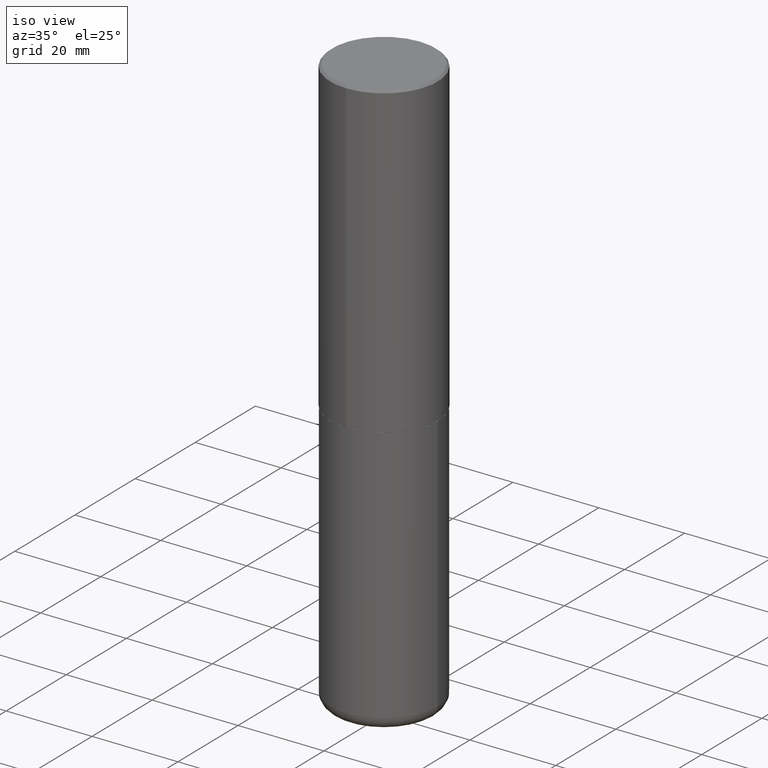
[diagram: clean part render]
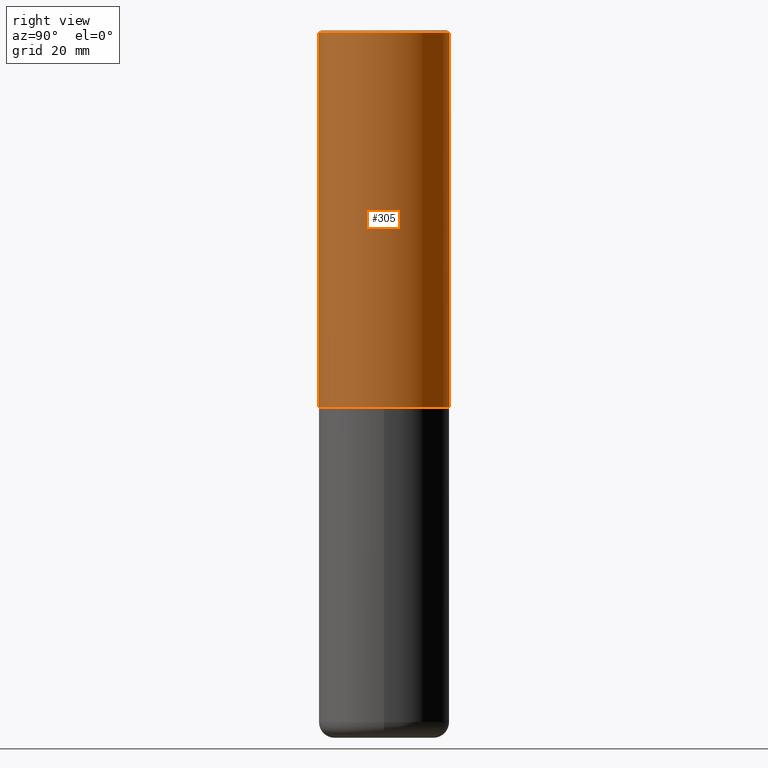
[diagram: tour spotlight — one face highlighted and labeled with its STEP entity id]
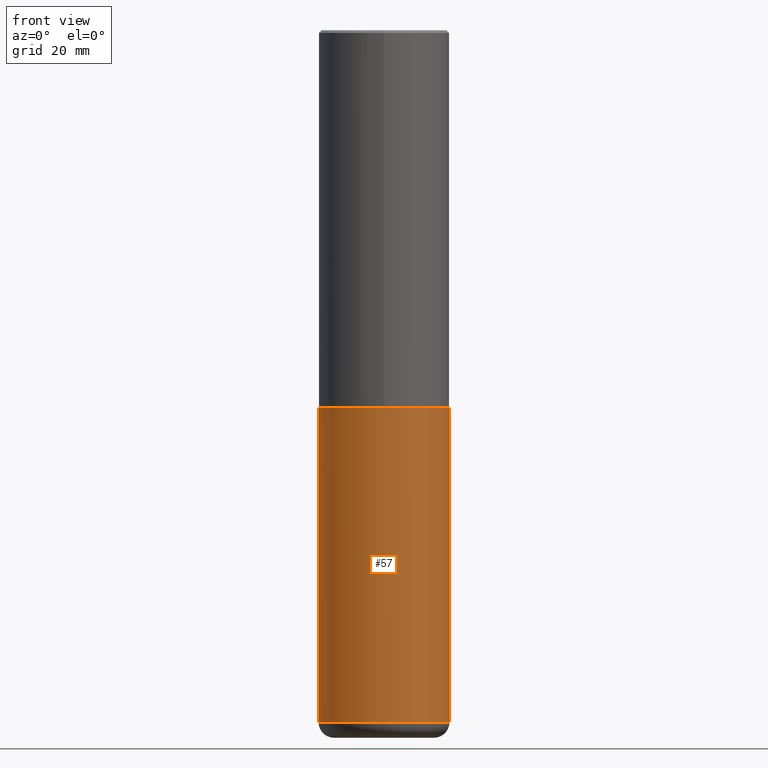
[diagram: tour spotlight — one face highlighted and labeled with its STEP entity id]
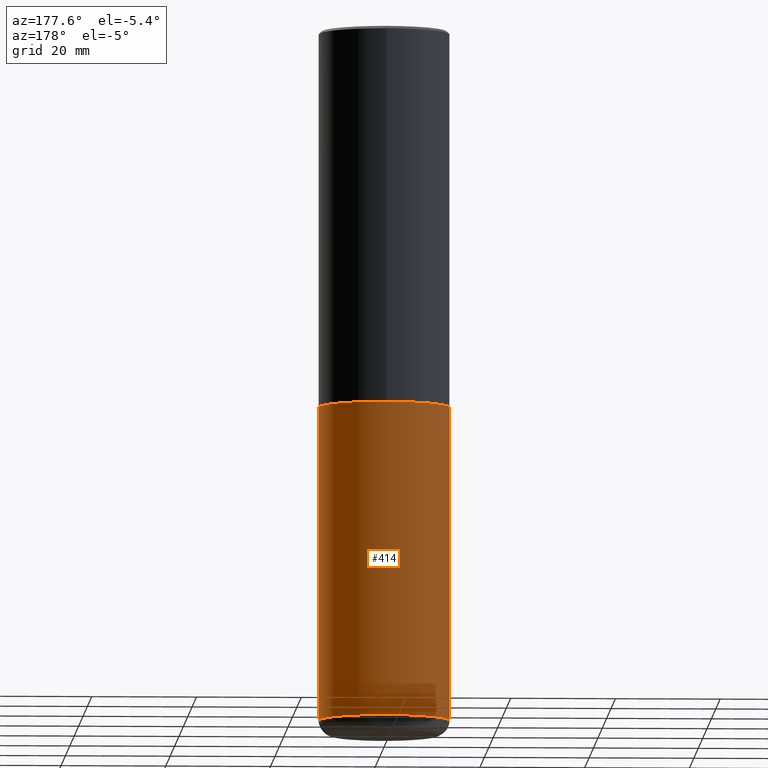
[diagram: tour spotlight — one face highlighted and labeled with its STEP entity id]
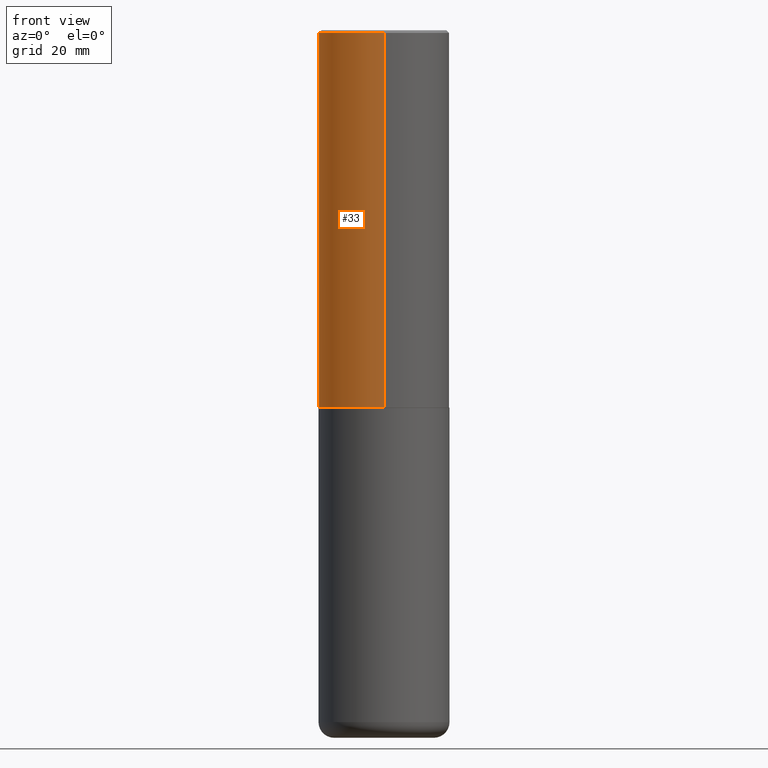
[diagram: tour spotlight — one face highlighted and labeled with its STEP entity id]
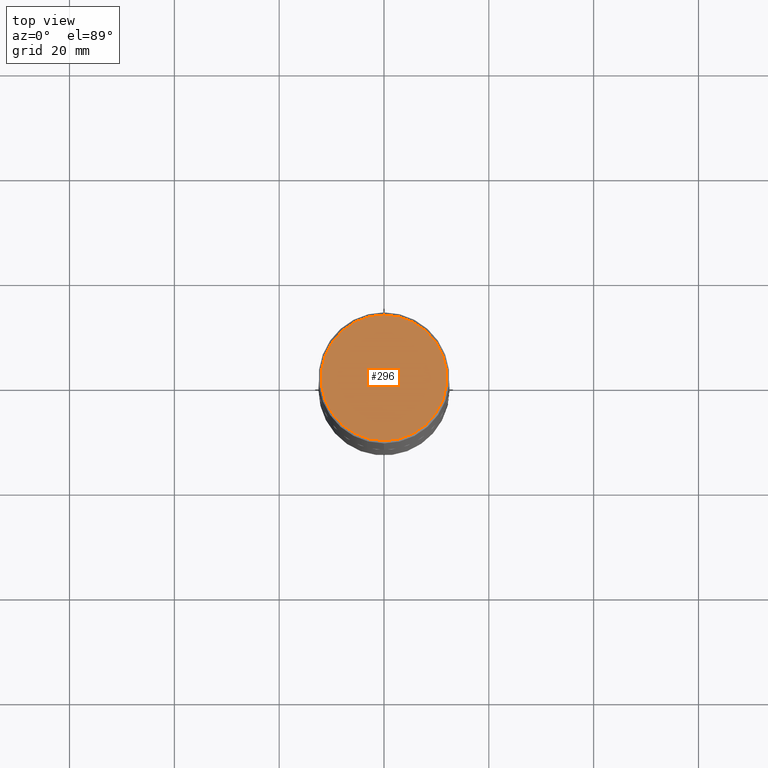
[diagram: tour spotlight — one face highlighted and labeled with its STEP entity id]
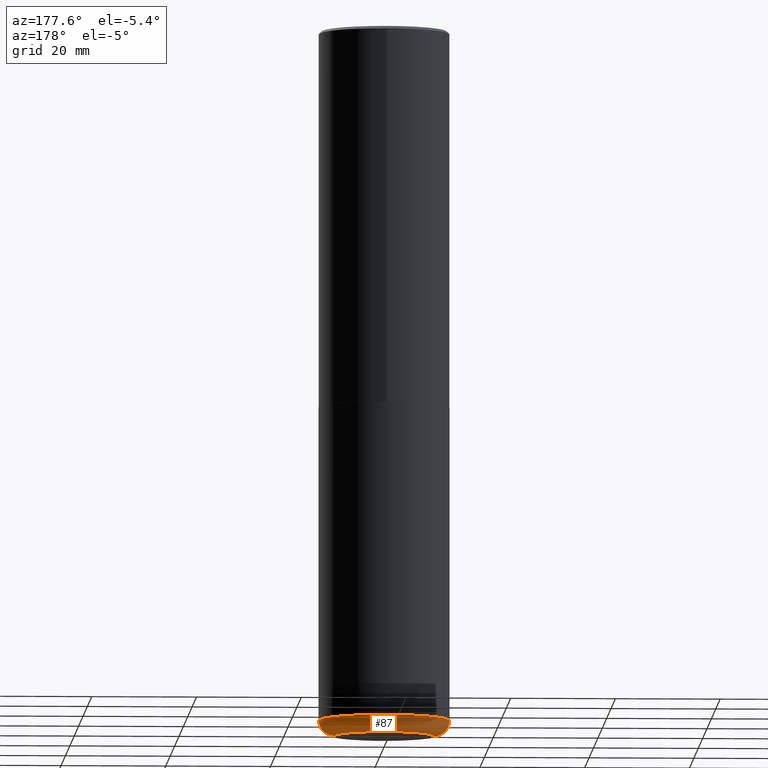
[diagram: tour spotlight — one face highlighted and labeled with its STEP entity id]
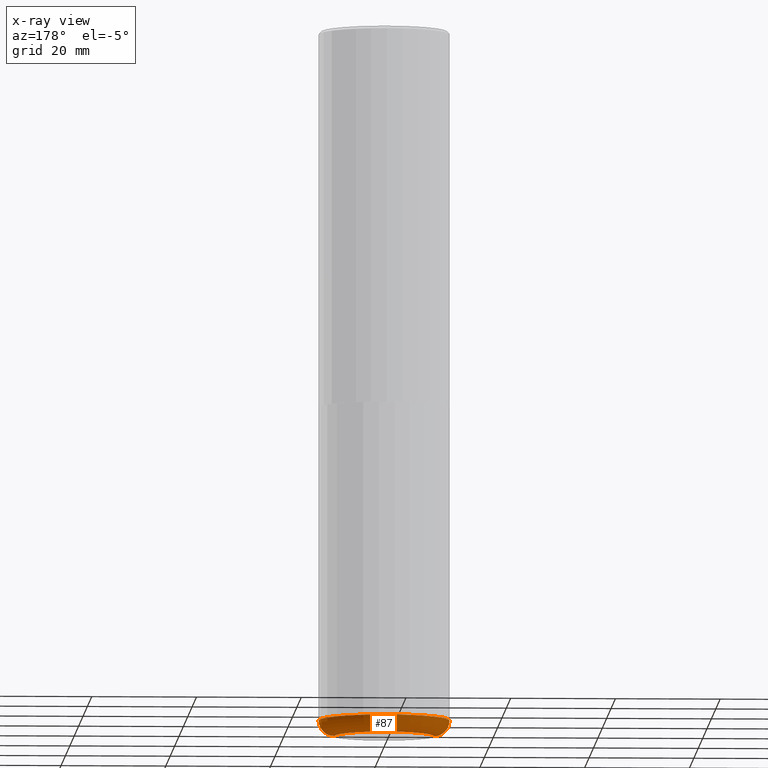
[diagram: x-ray of the same camera — body ghosted, this tour face saturated]
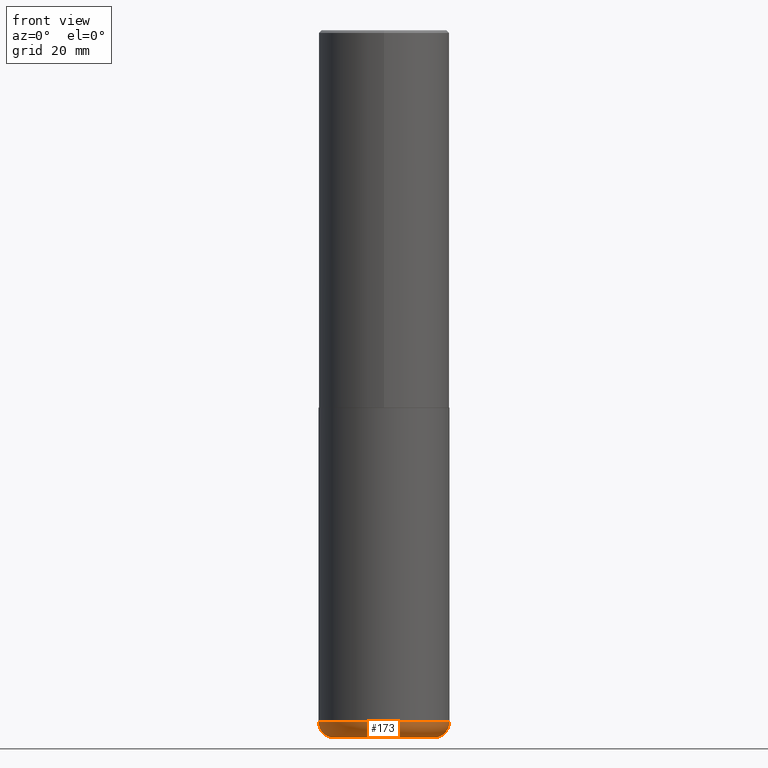
[diagram: tour spotlight — one face highlighted and labeled with its STEP entity id]
A machine part: a face-by-face anatomy tour. The part has 14 B-rep faces; the first image is the clean iso view, then the 7 largest visible faces are spotlighted one at a time (largest first), each with its STEP entity span.

Face 1 — right view, entity #305. In plain terms, the highlighted cylindrical surface (partial cylindrical patch) has radius 12.5006 mm, axis along (-0, 0, 1).
Definition (entity closure, byte-faithful):
#3 = DIRECTION ( 'NONE',  ( -2.445229172240879899E-29, 3.491824508290438613E-15, 1.000000000000000000 ) ) ;
#6 = CIRCLE ( 'NONE', #219, 0.4921500000000003094 ) ;
#10 = EDGE_CURVE ( 'NONE', #325, #43, #274, .T. ) ;
#30 = CARTESIAN_POINT ( 'NONE',  ( 0.000000000000000000, 0.000000000000000000, 0.000000000000000000 ) ) ;
#37 = ORIENTED_EDGE ( 'NONE', *, *, #357, .T. ) ;
#43 = VERTEX_POINT ( 'NONE', #56 ) ;
#49 = ORIENTED_EDGE ( 'NONE', *, *, #10, .F. ) ;
#56 = CARTESIAN_POINT ( 'NONE',  ( -3.376394089603258656E-15, -0.4921500000000000874, -0.01999999999999838712 ) ) ;
#62 = DIRECTION ( 'NONE',  ( -6.982962677686265922E-15, -1.000000000000000000, 3.330506545156063891E-15 ) ) ;
#64 = CARTESIAN_POINT ( 'NONE',  ( -3.436665081823228329E-15, -0.4921500000000101904, -2.833699999999998997 ) ) ;
#71 = VERTEX_POINT ( 'NONE', #278 ) ;
#91 = DIRECTION ( 'NONE',  ( -6.982962677686265922E-15, -1.000000000000000000, 3.495297233588267070E-15 ) ) ;
#105 = VECTOR ( 'NONE', #246, 39.37007874015748143 ) ;
#116 = CARTESIAN_POINT ( 'NONE',  ( -3.436665081823297354E-15, -0.4921500000000001984, 1.718501431755139742E-15 ) ) ;
#136 = EDGE_LOOP ( 'NONE', ( #323, #37, #400, #49 ) ) ;
#159 = AXIS2_PLACEMENT_3D ( 'NONE', #383, #258, #91 ) ;
#181 = EDGE_CURVE ( 'NONE', #325, #266, #6, .T. ) ;
#184 = CIRCLE ( 'NONE', #159, 0.4921500000000000319 ) ;
#188 = CARTESIAN_POINT ( 'NONE',  ( 6.929045905378983914E-29, -9.894783109142616722E-15, -2.833700000000000330 ) ) ;
#218 = DIRECTION ( 'NONE',  ( -2.445229172240879899E-29, 3.491824508290438219E-15, 1.000000000000000000 ) ) ;
#219 = AXIS2_PLACEMENT_3D ( 'NONE', #188, #315, #62 ) ;
#227 = VECTOR ( 'NONE', #3, 39.37007874015748143 ) ;
#246 = DIRECTION ( 'NONE',  ( -2.445229172240879899E-29, 3.491824508290438613E-15, 1.000000000000000000 ) ) ;
#258 = DIRECTION ( 'NONE',  ( -2.445229172240879899E-29, 3.491824508290438219E-15, 1.000000000000000000 ) ) ;
#266 = VERTEX_POINT ( 'NONE', #416 ) ;
#271 = LINE ( 'NONE', #322, #227 ) ;
#274 = LINE ( 'NONE', #116, #105 ) ;
#278 = CARTESIAN_POINT ( 'NONE',  ( 3.436665081823296565E-15, 0.4921499999999999764, -0.02000000000000182535 ) ) ;
#280 = EDGE_CURVE ( 'NONE', #43, #71, #184, .T. ) ;
#289 = FACE_OUTER_BOUND ( 'NONE', #136, .T. ) ;
#305 = ADVANCED_FACE ( 'NONE', ( #289 ), #388, .T. ) ;
#315 = DIRECTION ( 'NONE',  ( -2.445229172240879899E-29, 3.491824508290438219E-15, 1.000000000000000000 ) ) ;
#322 = CARTESIAN_POINT ( 'NONE',  ( 3.496936074043333686E-15, 0.4921500000000001984, -1.718501431755139742E-15 ) ) ;
#323 = ORIENTED_EDGE ( 'NONE', *, *, #181, .T. ) ;
#325 = VERTEX_POINT ( 'NONE', #64 ) ;
#348 = DIRECTION ( 'NONE',  ( -6.982962677686266711E-15, -1.000000000000000000, 3.491824508290437824E-15 ) ) ;
#357 = EDGE_CURVE ( 'NONE', #266, #71, #271, .T. ) ;
#383 = CARTESIAN_POINT ( 'NONE',  ( 4.890458344481786073E-31, -6.983649016580912824E-17, -0.02000000000000010797 ) ) ;
#388 = CYLINDRICAL_SURFACE ( 'NONE', #398, 0.4921500000000001984 ) ;
#398 = AXIS2_PLACEMENT_3D ( 'NONE', #30, #218, #348 ) ;
#400 = ORIENTED_EDGE ( 'NONE', *, *, #280, .F. ) ;
#416 = CARTESIAN_POINT ( 'NONE',  ( 3.496936074043369579E-15, 0.4921499999999904840, -2.833700000000002106 ) ) ;

Face 2 — front view, entity #57. In plain terms, the highlighted cylindrical surface (partial cylindrical patch) has radius 12.5006 mm, axis along (-0, 0, 1).
Definition (entity closure, byte-faithful):
#8 = ORIENTED_EDGE ( 'NONE', *, *, #324, .T. ) ;
#57 = ADVANCED_FACE ( 'NONE', ( #247 ), #374, .T. ) ;
#59 = EDGE_CURVE ( 'NONE', #408, #297, #153, .T. ) ;
#67 = DIRECTION ( 'NONE',  ( -2.445468806185136877E-29, 3.491481338843145188E-15, 1.000000000000000000 ) ) ;
#83 = AXIS2_PLACEMENT_3D ( 'NONE', #309, #380, #86 ) ;
#86 = DIRECTION ( 'NONE',  ( 1.000000000000000000, -6.982962677686265922E-15, 0.000000000000000000 ) ) ;
#89 = CARTESIAN_POINT ( 'NONE',  ( -0.4921499999999999764, -1.464794329579061349E-14, -5.196900000000000297 ) ) ;
#96 = DIRECTION ( 'NONE',  ( -2.445468806185136877E-29, 3.491481338843145188E-15, 1.000000000000000000 ) ) ;
#118 = LINE ( 'NONE', #312, #281 ) ;
#120 = LINE ( 'NONE', #352, #270 ) ;
#128 = VERTEX_POINT ( 'NONE', #89 ) ;
#153 = CIRCLE ( 'NONE', #83, 0.4921499999999999764 ) ;
#155 = CARTESIAN_POINT ( 'NONE',  ( 1.270885683886353718E-28, -1.814487936983394718E-14, -5.196900000000000297 ) ) ;
#157 = DIRECTION ( 'NONE',  ( 1.000000000000000000, -6.982962677686265133E-15, 0.000000000000000000 ) ) ;
#166 = EDGE_CURVE ( 'NONE', #128, #408, #118, .T. ) ;
#169 = ORIENTED_EDGE ( 'NONE', *, *, #59, .F. ) ;
#175 = DIRECTION ( 'NONE',  ( 1.000000000000000000, -6.982962677686265922E-15, 4.876176775795935793E-29 ) ) ;
#190 = CARTESIAN_POINT ( 'NONE',  ( 0.4921499999999999764, -1.333396723304196175E-14, -2.834700000000000220 ) ) ;
#230 = EDGE_CURVE ( 'NONE', #128, #261, #363, .T. ) ;
#241 = CARTESIAN_POINT ( 'NONE',  ( 0.000000000000000000, 0.000000000000000000, 0.000000000000000000 ) ) ;
#247 = FACE_OUTER_BOUND ( 'NONE', #299, .T. ) ;
#261 = VERTEX_POINT ( 'NONE', #285 ) ;
#270 = VECTOR ( 'NONE', #96, 39.37007874015748143 ) ;
#281 = VECTOR ( 'NONE', #67, 39.37007874015748143 ) ;
#285 = CARTESIAN_POINT ( 'NONE',  ( 0.4921499999999999764, -2.158154445165724138E-14, -5.196900000000000297 ) ) ;
#291 = ORIENTED_EDGE ( 'NONE', *, *, #230, .T. ) ;
#297 = VERTEX_POINT ( 'NONE', #190 ) ;
#298 = CARTESIAN_POINT ( 'NONE',  ( -0.4921499999999999764, -1.052415468648297289E-14, -2.834700000000000220 ) ) ;
#299 = EDGE_LOOP ( 'NONE', ( #366, #291, #8, #169 ) ) ;
#300 = AXIS2_PLACEMENT_3D ( 'NONE', #241, #340, #175 ) ;
#309 = CARTESIAN_POINT ( 'NONE',  ( 6.932170424893007423E-29, -9.897302151218665974E-15, -2.834700000000000220 ) ) ;
#312 = CARTESIAN_POINT ( 'NONE',  ( -0.4921499999999999764, 3.496936074043332897E-15, -2.420853904668951509E-29 ) ) ;
#319 = AXIS2_PLACEMENT_3D ( 'NONE', #155, #415, #157 ) ;
#324 = EDGE_CURVE ( 'NONE', #261, #297, #120, .T. ) ;
#340 = DIRECTION ( 'NONE',  ( -2.445468806185136597E-29, 3.491481338843145583E-15, 1.000000000000000000 ) ) ;
#352 = CARTESIAN_POINT ( 'NONE',  ( 0.4921499999999999764, -3.436665081823295777E-15, 2.399810400207969603E-29 ) ) ;
#363 = CIRCLE ( 'NONE', #319, 0.4921500000000000319 ) ;
#366 = ORIENTED_EDGE ( 'NONE', *, *, #166, .F. ) ;
#374 = CYLINDRICAL_SURFACE ( 'NONE', #300, 0.4921499999999999764 ) ;
#380 = DIRECTION ( 'NONE',  ( -2.445468806185136597E-29, 3.491481338843145583E-15, 1.000000000000000000 ) ) ;
#408 = VERTEX_POINT ( 'NONE', #298 ) ;
#415 = DIRECTION ( 'NONE',  ( -2.445468806185136597E-29, 3.491481338843145583E-15, 1.000000000000000000 ) ) ;

Face 3 — auxiliary view, entity #414. In plain terms, the highlighted cylindrical surface (partial cylindrical patch) has radius 12.5006 mm, axis along (-0, 0, 1).
Definition (entity closure, byte-faithful):
#1 = CARTESIAN_POINT ( 'NONE',  ( 1.270885683886353718E-28, -1.814487936983394718E-14, -5.196900000000000297 ) ) ;
#5 = DIRECTION ( 'NONE',  ( -2.445468806185136597E-29, 3.491481338843145583E-15, 1.000000000000000000 ) ) ;
#13 = CARTESIAN_POINT ( 'NONE',  ( 6.932170424893007423E-29, -9.897302151218665974E-15, -2.834700000000000220 ) ) ;
#44 = DIRECTION ( 'NONE',  ( 1.000000000000000000, -6.982962677686265922E-15, 0.000000000000000000 ) ) ;
#54 = CIRCLE ( 'NONE', #269, 0.4921500000000000319 ) ;
#58 = DIRECTION ( 'NONE',  ( -2.445468806185136597E-29, 3.491481338843145583E-15, 1.000000000000000000 ) ) ;
#67 = DIRECTION ( 'NONE',  ( -2.445468806185136877E-29, 3.491481338843145188E-15, 1.000000000000000000 ) ) ;
#89 = CARTESIAN_POINT ( 'NONE',  ( -0.4921499999999999764, -1.464794329579061349E-14, -5.196900000000000297 ) ) ;
#96 = DIRECTION ( 'NONE',  ( -2.445468806185136877E-29, 3.491481338843145188E-15, 1.000000000000000000 ) ) ;
#98 = CIRCLE ( 'NONE', #235, 0.4921499999999999764 ) ;
#107 = EDGE_LOOP ( 'NONE', ( #351, #234, #162, #238 ) ) ;
#118 = LINE ( 'NONE', #312, #281 ) ;
#120 = LINE ( 'NONE', #352, #270 ) ;
#128 = VERTEX_POINT ( 'NONE', #89 ) ;
#161 = FACE_OUTER_BOUND ( 'NONE', #107, .T. ) ;
#162 = ORIENTED_EDGE ( 'NONE', *, *, #336, .F. ) ;
#164 = CARTESIAN_POINT ( 'NONE',  ( 0.000000000000000000, 0.000000000000000000, 0.000000000000000000 ) ) ;
#166 = EDGE_CURVE ( 'NONE', #128, #408, #118, .T. ) ;
#190 = CARTESIAN_POINT ( 'NONE',  ( 0.4921499999999999764, -1.333396723304196175E-14, -2.834700000000000220 ) ) ;
#203 = DIRECTION ( 'NONE',  ( 1.000000000000000000, -6.982962677686265922E-15, 4.876176775795935793E-29 ) ) ;
#228 = CYLINDRICAL_SURFACE ( 'NONE', #391, 0.4921499999999999764 ) ;
#234 = ORIENTED_EDGE ( 'NONE', *, *, #166, .T. ) ;
#235 = AXIS2_PLACEMENT_3D ( 'NONE', #13, #5, #44 ) ;
#238 = ORIENTED_EDGE ( 'NONE', *, *, #324, .F. ) ;
#251 = EDGE_CURVE ( 'NONE', #261, #128, #54, .T. ) ;
#261 = VERTEX_POINT ( 'NONE', #285 ) ;
#269 = AXIS2_PLACEMENT_3D ( 'NONE', #1, #58, #286 ) ;
#270 = VECTOR ( 'NONE', #96, 39.37007874015748143 ) ;
#281 = VECTOR ( 'NONE', #67, 39.37007874015748143 ) ;
#285 = CARTESIAN_POINT ( 'NONE',  ( 0.4921499999999999764, -2.158154445165724138E-14, -5.196900000000000297 ) ) ;
#286 = DIRECTION ( 'NONE',  ( 1.000000000000000000, -6.982962677686265133E-15, 0.000000000000000000 ) ) ;
#297 = VERTEX_POINT ( 'NONE', #190 ) ;
#298 = CARTESIAN_POINT ( 'NONE',  ( -0.4921499999999999764, -1.052415468648297289E-14, -2.834700000000000220 ) ) ;
#312 = CARTESIAN_POINT ( 'NONE',  ( -0.4921499999999999764, 3.496936074043332897E-15, -2.420853904668951509E-29 ) ) ;
#324 = EDGE_CURVE ( 'NONE', #261, #297, #120, .T. ) ;
#336 = EDGE_CURVE ( 'NONE', #297, #408, #98, .T. ) ;
#351 = ORIENTED_EDGE ( 'NONE', *, *, #251, .T. ) ;
#352 = CARTESIAN_POINT ( 'NONE',  ( 0.4921499999999999764, -3.436665081823295777E-15, 2.399810400207969603E-29 ) ) ;
#389 = DIRECTION ( 'NONE',  ( -2.445468806185136597E-29, 3.491481338843145583E-15, 1.000000000000000000 ) ) ;
#391 = AXIS2_PLACEMENT_3D ( 'NONE', #164, #389, #203 ) ;
#408 = VERTEX_POINT ( 'NONE', #298 ) ;
#414 = ADVANCED_FACE ( 'NONE', ( #161 ), #228, .T. ) ;

Face 4 — front view, entity #33. In plain terms, the highlighted cylindrical surface (partial cylindrical patch) has radius 12.5006 mm, axis along (-0, 0, 1).
Definition (entity closure, byte-faithful):
#2 = EDGE_CURVE ( 'NONE', #266, #325, #334, .T. ) ;
#3 = DIRECTION ( 'NONE',  ( -2.445229172240879899E-29, 3.491824508290438613E-15, 1.000000000000000000 ) ) ;
#10 = EDGE_CURVE ( 'NONE', #325, #43, #274, .T. ) ;
#14 = ORIENTED_EDGE ( 'NONE', *, *, #357, .F. ) ;
#28 = CARTESIAN_POINT ( 'NONE',  ( 4.890458344481786073E-31, -6.983649016580912824E-17, -0.02000000000000010797 ) ) ;
#33 = ADVANCED_FACE ( 'NONE', ( #403 ), #407, .T. ) ;
#43 = VERTEX_POINT ( 'NONE', #56 ) ;
#56 = CARTESIAN_POINT ( 'NONE',  ( -3.376394089603258656E-15, -0.4921500000000000874, -0.01999999999999838712 ) ) ;
#64 = CARTESIAN_POINT ( 'NONE',  ( -3.436665081823228329E-15, -0.4921500000000101904, -2.833699999999998997 ) ) ;
#71 = VERTEX_POINT ( 'NONE', #278 ) ;
#97 = AXIS2_PLACEMENT_3D ( 'NONE', #28, #282, #259 ) ;
#103 = ORIENTED_EDGE ( 'NONE', *, *, #193, .F. ) ;
#105 = VECTOR ( 'NONE', #246, 39.37007874015748143 ) ;
#112 = DIRECTION ( 'NONE',  ( -6.982962677686266711E-15, -1.000000000000000000, 3.491824508290437824E-15 ) ) ;
#114 = CARTESIAN_POINT ( 'NONE',  ( 0.000000000000000000, 0.000000000000000000, 0.000000000000000000 ) ) ;
#116 = CARTESIAN_POINT ( 'NONE',  ( -3.436665081823297354E-15, -0.4921500000000001984, 1.718501431755139742E-15 ) ) ;
#134 = EDGE_LOOP ( 'NONE', ( #14, #394, #293, #103 ) ) ;
#142 = DIRECTION ( 'NONE',  ( -2.445229172240879899E-29, 3.491824508290438219E-15, 1.000000000000000000 ) ) ;
#179 = CARTESIAN_POINT ( 'NONE',  ( 6.929045905378983914E-29, -9.894783109142616722E-15, -2.833700000000000330 ) ) ;
#191 = AXIS2_PLACEMENT_3D ( 'NONE', #114, #142, #112 ) ;
#193 = EDGE_CURVE ( 'NONE', #71, #43, #390, .T. ) ;
#227 = VECTOR ( 'NONE', #3, 39.37007874015748143 ) ;
#244 = DIRECTION ( 'NONE',  ( -6.982962677686265922E-15, -1.000000000000000000, 3.330506545156063891E-15 ) ) ;
#246 = DIRECTION ( 'NONE',  ( -2.445229172240879899E-29, 3.491824508290438613E-15, 1.000000000000000000 ) ) ;
#249 = DIRECTION ( 'NONE',  ( -2.445229172240879899E-29, 3.491824508290438219E-15, 1.000000000000000000 ) ) ;
#259 = DIRECTION ( 'NONE',  ( -6.982962677686265922E-15, -1.000000000000000000, 3.495297233588267070E-15 ) ) ;
#262 = AXIS2_PLACEMENT_3D ( 'NONE', #179, #249, #244 ) ;
#266 = VERTEX_POINT ( 'NONE', #416 ) ;
#271 = LINE ( 'NONE', #322, #227 ) ;
#274 = LINE ( 'NONE', #116, #105 ) ;
#278 = CARTESIAN_POINT ( 'NONE',  ( 3.436665081823296565E-15, 0.4921499999999999764, -0.02000000000000182535 ) ) ;
#282 = DIRECTION ( 'NONE',  ( -2.445229172240879899E-29, 3.491824508290438219E-15, 1.000000000000000000 ) ) ;
#293 = ORIENTED_EDGE ( 'NONE', *, *, #10, .T. ) ;
#322 = CARTESIAN_POINT ( 'NONE',  ( 3.496936074043333686E-15, 0.4921500000000001984, -1.718501431755139742E-15 ) ) ;
#325 = VERTEX_POINT ( 'NONE', #64 ) ;
#334 = CIRCLE ( 'NONE', #262, 0.4921500000000003094 ) ;
#357 = EDGE_CURVE ( 'NONE', #266, #71, #271, .T. ) ;
#390 = CIRCLE ( 'NONE', #97, 0.4921500000000000319 ) ;
#394 = ORIENTED_EDGE ( 'NONE', *, *, #2, .T. ) ;
#403 = FACE_OUTER_BOUND ( 'NONE', #134, .T. ) ;
#407 = CYLINDRICAL_SURFACE ( 'NONE', #191, 0.4921500000000001984 ) ;
#416 = CARTESIAN_POINT ( 'NONE',  ( 3.496936074043369579E-15, 0.4921499999999904840, -2.833700000000002106 ) ) ;

Face 5 — top view, entity #296. In plain terms, the highlighted planar face has unit normal (0, -0, -1).
Definition (entity closure, byte-faithful):
#17 = CARTESIAN_POINT ( 'NONE',  ( 3.366835455046432873E-15, 0.4721499999999997921, -1.366781089788163134E-15 ) ) ;
#29 = CARTESIAN_POINT ( 'NONE',  ( -3.307789109625542536E-15, -0.4721499999999997921, 1.930548793390495776E-15 ) ) ;
#31 = AXIS2_PLACEMENT_3D ( 'NONE', #399, #137, #194 ) ;
#39 = AXIS2_PLACEMENT_3D ( 'NONE', #255, #386, #182 ) ;
#70 = VERTEX_POINT ( 'NONE', #17 ) ;
#92 = PLANE ( 'NONE',  #39 ) ;
#104 = ORIENTED_EDGE ( 'NONE', *, *, #349, .T. ) ;
#124 = AXIS2_PLACEMENT_3D ( 'NONE', #418, #217, #252 ) ;
#137 = DIRECTION ( 'NONE',  ( -2.445229172240879899E-29, 3.491824508290438219E-15, 1.000000000000000000 ) ) ;
#182 = DIRECTION ( 'NONE',  ( 6.982962677686265922E-15, 1.000000000000000000, -3.491824508290438613E-15 ) ) ;
#187 = EDGE_CURVE ( 'NONE', #268, #70, #214, .T. ) ;
#194 = DIRECTION ( 'NONE',  ( -6.982962677686265922E-15, -1.000000000000000000, 3.491824508290437824E-15 ) ) ;
#214 = CIRCLE ( 'NONE', #124, 0.4721499999999997921 ) ;
#217 = DIRECTION ( 'NONE',  ( -2.445229172240879899E-29, 3.491824508290438219E-15, 1.000000000000000000 ) ) ;
#236 = EDGE_LOOP ( 'NONE', ( #104, #364 ) ) ;
#252 = DIRECTION ( 'NONE',  ( -6.982962677686265922E-15, -1.000000000000000000, 3.491824508290437824E-15 ) ) ;
#253 = FACE_OUTER_BOUND ( 'NONE', #236, .T. ) ;
#255 = CARTESIAN_POINT ( 'NONE',  ( 3.297005828269569180E-15, 0.4721499999999997921, -1.507723015688746393E-15 ) ) ;
#268 = VERTEX_POINT ( 'NONE', #29 ) ;
#288 = CIRCLE ( 'NONE', #31, 0.4721499999999997921 ) ;
#296 = ADVANCED_FACE ( 'NONE', ( #253 ), #92, .F. ) ;
#349 = EDGE_CURVE ( 'NONE', #70, #268, #288, .T. ) ;
#364 = ORIENTED_EDGE ( 'NONE', *, *, #187, .T. ) ;
#386 = DIRECTION ( 'NONE',  ( 2.445229172240879339E-29, -3.491824508290438613E-15, -1.000000000000000000 ) ) ;
#399 = CARTESIAN_POINT ( 'NONE',  ( -6.892706176078369160E-45, 9.842889422106222579E-31, 2.818838518011663701E-16 ) ) ;
#418 = CARTESIAN_POINT ( 'NONE',  ( -6.892706176078369160E-45, 9.842889422106222579E-31, 2.818838518011663701E-16 ) ) ;

Face 6 — auxiliary view, entity #87. An x-ray twin of the same camera follows (body ghosted, this face saturated) — the face is partly hidden behind the body. In plain terms, the highlighted toroidal blend (fillet) surface has major radius 9.5009 mm and minor (blend) radius 2.9997 mm.
Definition (entity closure, byte-faithful):
#1 = CARTESIAN_POINT ( 'NONE',  ( 1.270885683886353718E-28, -1.814487936983394718E-14, -5.196900000000000297 ) ) ;
#12 = ORIENTED_EDGE ( 'NONE', *, *, #130, .T. ) ;
#27 = CIRCLE ( 'NONE', #371, 0.1181000000000000383 ) ;
#52 = FACE_OUTER_BOUND ( 'NONE', #333, .T. ) ;
#53 = CARTESIAN_POINT ( 'NONE',  ( -0.3740499999999999381, -1.548709426672329248E-14, -5.196900000000000297 ) ) ;
#54 = CIRCLE ( 'NONE', #269, 0.4921500000000000319 ) ;
#58 = DIRECTION ( 'NONE',  ( -2.445468806185136597E-29, 3.491481338843145583E-15, 1.000000000000000000 ) ) ;
#69 = EDGE_CURVE ( 'NONE', #225, #128, #417, .T. ) ;
#73 = CIRCLE ( 'NONE', #226, 0.3740499999999999381 ) ;
#74 = VERTEX_POINT ( 'NONE', #144 ) ;
#87 = ADVANCED_FACE ( 'NONE', ( #52 ), #355, .T. ) ;
#88 = ORIENTED_EDGE ( 'NONE', *, *, #69, .T. ) ;
#89 = CARTESIAN_POINT ( 'NONE',  ( -0.4921499999999999764, -1.464794329579061349E-14, -5.196900000000000297 ) ) ;
#90 = DIRECTION ( 'NONE',  ( 1.000000000000000000, -6.982962677686265133E-15, 0.000000000000000000 ) ) ;
#95 = DIRECTION ( 'NONE',  ( 1.000000000000000000, -6.982962677686270655E-15, 0.000000000000000000 ) ) ;
#110 = ORIENTED_EDGE ( 'NONE', *, *, #199, .F. ) ;
#121 = DIRECTION ( 'NONE',  ( -6.982962677686266711E-15, -1.000000000000000000, 3.491481338843145583E-15 ) ) ;
#128 = VERTEX_POINT ( 'NONE', #89 ) ;
#130 = EDGE_CURVE ( 'NONE', #74, #225, #73, .T. ) ;
#144 = CARTESIAN_POINT ( 'NONE',  ( 0.3740499999999999381, -2.116920050553986882E-14, -5.315000000000000391 ) ) ;
#199 = EDGE_CURVE ( 'NONE', #74, #261, #27, .T. ) ;
#215 = CARTESIAN_POINT ( 'NONE',  ( 1.299766670487400218E-28, -1.855722331595131973E-14, -5.315000000000000391 ) ) ;
#224 = CARTESIAN_POINT ( 'NONE',  ( -0.3740499999999999381, -1.527369075431564084E-14, -5.315000000000000391 ) ) ;
#225 = VERTEX_POINT ( 'NONE', #224 ) ;
#226 = AXIS2_PLACEMENT_3D ( 'NONE', #215, #344, #90 ) ;
#251 = EDGE_CURVE ( 'NONE', #261, #128, #54, .T. ) ;
#256 = AXIS2_PLACEMENT_3D ( 'NONE', #310, #279, #307 ) ;
#261 = VERTEX_POINT ( 'NONE', #285 ) ;
#269 = AXIS2_PLACEMENT_3D ( 'NONE', #1, #58, #286 ) ;
#279 = DIRECTION ( 'NONE',  ( -2.445468806185136597E-29, 3.491481338843145583E-15, 1.000000000000000000 ) ) ;
#285 = CARTESIAN_POINT ( 'NONE',  ( 0.4921499999999999764, -2.158154445165724138E-14, -5.196900000000000297 ) ) ;
#286 = DIRECTION ( 'NONE',  ( 1.000000000000000000, -6.982962677686265133E-15, 0.000000000000000000 ) ) ;
#304 = DIRECTION ( 'NONE',  ( -1.000000000000000000, 7.105427357601001859E-15, 0.000000000000000000 ) ) ;
#307 = DIRECTION ( 'NONE',  ( 1.000000000000000000, -6.982962677686266711E-15, 4.883557194083112340E-29 ) ) ;
#310 = CARTESIAN_POINT ( 'NONE',  ( 1.270885683886353718E-28, -1.814487936983394718E-14, -5.196900000000000297 ) ) ;
#317 = CARTESIAN_POINT ( 'NONE',  ( 0.3740499999999999381, -2.075685655942249311E-14, -5.196900000000000297 ) ) ;
#333 = EDGE_LOOP ( 'NONE', ( #12, #88, #406, #110 ) ) ;
#338 = DIRECTION ( 'NONE',  ( 7.105427357601001859E-15, 1.000000000000000000, -3.491481338843145583E-15 ) ) ;
#341 = AXIS2_PLACEMENT_3D ( 'NONE', #53, #338, #304 ) ;
#344 = DIRECTION ( 'NONE',  ( -2.445468806185136597E-29, 3.491481338843145583E-15, 1.000000000000000000 ) ) ;
#355 = TOROIDAL_SURFACE ( 'NONE', #256, 0.3740499999999999381, 0.1181000000000000660 ) ;
#371 = AXIS2_PLACEMENT_3D ( 'NONE', #317, #121, #95 ) ;
#406 = ORIENTED_EDGE ( 'NONE', *, *, #251, .F. ) ;
#417 = CIRCLE ( 'NONE', #341, 0.1181000000000000383 ) ;

Face 7 — front view, entity #173. In plain terms, the highlighted toroidal blend (fillet) surface has major radius 9.5009 mm and minor (blend) radius 2.9997 mm.
Definition (entity closure, byte-faithful):
#27 = CIRCLE ( 'NONE', #371, 0.1181000000000000383 ) ;
#53 = CARTESIAN_POINT ( 'NONE',  ( -0.3740499999999999381, -1.548709426672329248E-14, -5.196900000000000297 ) ) ;
#61 = CARTESIAN_POINT ( 'NONE',  ( 1.299766670487400218E-28, -1.855722331595131973E-14, -5.315000000000000391 ) ) ;
#69 = EDGE_CURVE ( 'NONE', #225, #128, #417, .T. ) ;
#74 = VERTEX_POINT ( 'NONE', #144 ) ;
#89 = CARTESIAN_POINT ( 'NONE',  ( -0.4921499999999999764, -1.464794329579061349E-14, -5.196900000000000297 ) ) ;
#93 = DIRECTION ( 'NONE',  ( 1.000000000000000000, -6.982962677686265133E-15, 0.000000000000000000 ) ) ;
#95 = DIRECTION ( 'NONE',  ( 1.000000000000000000, -6.982962677686270655E-15, 0.000000000000000000 ) ) ;
#101 = EDGE_LOOP ( 'NONE', ( #195, #229, #361, #392 ) ) ;
#121 = DIRECTION ( 'NONE',  ( -6.982962677686266711E-15, -1.000000000000000000, 3.491481338843145583E-15 ) ) ;
#125 = FACE_OUTER_BOUND ( 'NONE', #101, .T. ) ;
#128 = VERTEX_POINT ( 'NONE', #89 ) ;
#129 = TOROIDAL_SURFACE ( 'NONE', #308, 0.3740499999999999381, 0.1181000000000000660 ) ;
#144 = CARTESIAN_POINT ( 'NONE',  ( 0.3740499999999999381, -2.116920050553986882E-14, -5.315000000000000391 ) ) ;
#155 = CARTESIAN_POINT ( 'NONE',  ( 1.270885683886353718E-28, -1.814487936983394718E-14, -5.196900000000000297 ) ) ;
#157 = DIRECTION ( 'NONE',  ( 1.000000000000000000, -6.982962677686265133E-15, 0.000000000000000000 ) ) ;
#158 = CARTESIAN_POINT ( 'NONE',  ( 1.270885683886353718E-28, -1.814487936983394718E-14, -5.196900000000000297 ) ) ;
#173 = ADVANCED_FACE ( 'NONE', ( #125 ), #129, .T. ) ;
#195 = ORIENTED_EDGE ( 'NONE', *, *, #69, .F. ) ;
#199 = EDGE_CURVE ( 'NONE', #74, #261, #27, .T. ) ;
#216 = AXIS2_PLACEMENT_3D ( 'NONE', #61, #222, #93 ) ;
#222 = DIRECTION ( 'NONE',  ( -2.445468806185136597E-29, 3.491481338843145583E-15, 1.000000000000000000 ) ) ;
#224 = CARTESIAN_POINT ( 'NONE',  ( -0.3740499999999999381, -1.527369075431564084E-14, -5.315000000000000391 ) ) ;
#225 = VERTEX_POINT ( 'NONE', #224 ) ;
#229 = ORIENTED_EDGE ( 'NONE', *, *, #316, .T. ) ;
#230 = EDGE_CURVE ( 'NONE', #128, #261, #363, .T. ) ;
#261 = VERTEX_POINT ( 'NONE', #285 ) ;
#283 = CIRCLE ( 'NONE', #216, 0.3740499999999999381 ) ;
#284 = DIRECTION ( 'NONE',  ( 1.000000000000000000, -6.982962677686266711E-15, 4.883557194083112340E-29 ) ) ;
#285 = CARTESIAN_POINT ( 'NONE',  ( 0.4921499999999999764, -2.158154445165724138E-14, -5.196900000000000297 ) ) ;
#304 = DIRECTION ( 'NONE',  ( -1.000000000000000000, 7.105427357601001859E-15, 0.000000000000000000 ) ) ;
#308 = AXIS2_PLACEMENT_3D ( 'NONE', #158, #350, #284 ) ;
#316 = EDGE_CURVE ( 'NONE', #225, #74, #283, .T. ) ;
#317 = CARTESIAN_POINT ( 'NONE',  ( 0.3740499999999999381, -2.075685655942249311E-14, -5.196900000000000297 ) ) ;
#319 = AXIS2_PLACEMENT_3D ( 'NONE', #155, #415, #157 ) ;
#338 = DIRECTION ( 'NONE',  ( 7.105427357601001859E-15, 1.000000000000000000, -3.491481338843145583E-15 ) ) ;
#341 = AXIS2_PLACEMENT_3D ( 'NONE', #53, #338, #304 ) ;
#350 = DIRECTION ( 'NONE',  ( -2.445468806185136597E-29, 3.491481338843145583E-15, 1.000000000000000000 ) ) ;
#361 = ORIENTED_EDGE ( 'NONE', *, *, #199, .T. ) ;
#363 = CIRCLE ( 'NONE', #319, 0.4921500000000000319 ) ;
#371 = AXIS2_PLACEMENT_3D ( 'NONE', #317, #121, #95 ) ;
#392 = ORIENTED_EDGE ( 'NONE', *, *, #230, .F. ) ;
#415 = DIRECTION ( 'NONE',  ( -2.445468806185136597E-29, 3.491481338843145583E-15, 1.000000000000000000 ) ) ;
#417 = CIRCLE ( 'NONE', #341, 0.1181000000000000383 ) ;